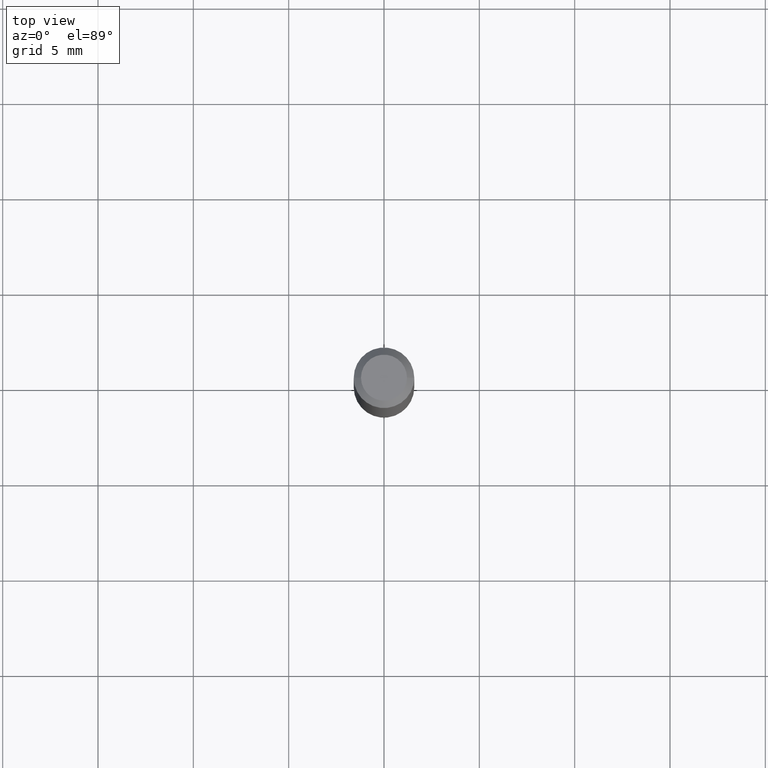
[diagram: clean part render]
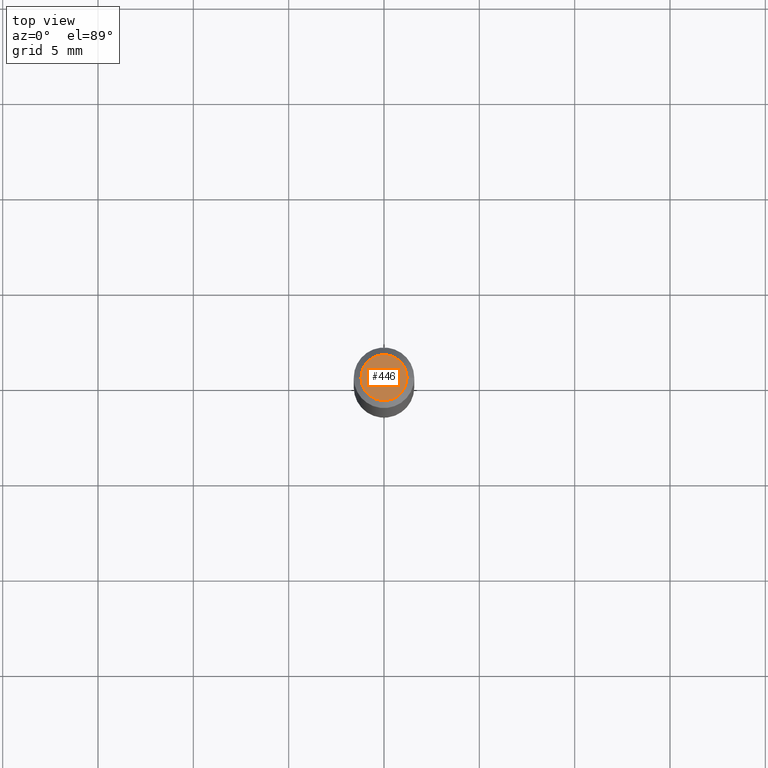
[diagram: same view with one face highlighted and labeled with its STEP entity id]
A machine part, top view. The second image highlights one B-rep face of the part: STEP entity #446.
In plain terms, the highlighted planar face has unit normal (0, -0, -1).
Its self-contained STEP definition (entity closure, byte-faithful):
#4 = CARTESIAN_POINT ( 'NONE',  ( 3.316907271900976589E-16, 0.04750000000000000749, -2.925296391183627249E-17 ) ) ;
#20 = AXIS2_PLACEMENT_3D ( 'NONE', #4, #173, #454 ) ;
#68 = VERTEX_POINT ( 'NONE', #186 ) ;
#77 = DIRECTION ( 'NONE',  ( 1.000000000000000000, -6.982962677686266711E-15, 4.852736867747365086E-29 ) ) ;
#109 = DIRECTION ( 'NONE',  ( -2.445468806185136597E-29, 3.491481338843145583E-15, 1.000000000000000000 ) ) ;
#132 = DIRECTION ( 'NONE',  ( 1.000000000000000000, -6.982962677686266711E-15, 4.852736867747365086E-29 ) ) ;
#173 = DIRECTION ( 'NONE',  ( 2.438088387897960049E-29, -3.491481338843145188E-15, -1.000000000000000000 ) ) ;
#180 = VERTEX_POINT ( 'NONE', #476 ) ;
#186 = CARTESIAN_POINT ( 'NONE',  ( -0.04750000000000000749, 3.578768372314221353E-16, 2.731847993664239060E-16 ) ) ;
#204 = CARTESIAN_POINT ( 'NONE',  ( -6.680649051745406845E-45, 9.538196290434862081E-31, 2.731847993664263218E-16 ) ) ;
#207 = AXIS2_PLACEMENT_3D ( 'NONE', #508, #109, #77 ) ;
#212 = FACE_OUTER_BOUND ( 'NONE', #306, .T. ) ;
#250 = CIRCLE ( 'NONE', #514, 0.04750000000000000749 ) ;
#260 = EDGE_CURVE ( 'NONE', #180, #68, #483, .T. ) ;
#288 = DIRECTION ( 'NONE',  ( -2.445468806185136597E-29, 3.491481338843145583E-15, 1.000000000000000000 ) ) ;
#306 = EDGE_LOOP ( 'NONE', ( #430, #313 ) ) ;
#313 = ORIENTED_EDGE ( 'NONE', *, *, #260, .T. ) ;
#369 = EDGE_CURVE ( 'NONE', #68, #180, #250, .T. ) ;
#378 = PLANE ( 'NONE',  #20 ) ;
#430 = ORIENTED_EDGE ( 'NONE', *, *, #369, .T. ) ;
#446 = ADVANCED_FACE ( 'NONE', ( #212 ), #378, .F. ) ;
#454 = DIRECTION ( 'NONE',  ( -1.000000000000000000, 6.982962677686265922E-15, -4.876176775795935793E-29 ) ) ;
#476 = CARTESIAN_POINT ( 'NONE',  ( 0.04750000000000000749, -4.035134999187568762E-16, 2.731847993664288856E-16 ) ) ;
#483 = CIRCLE ( 'NONE', #207, 0.04750000000000000749 ) ;
#508 = CARTESIAN_POINT ( 'NONE',  ( -6.680649051745406845E-45, 9.538196290434862081E-31, 2.731847993664263218E-16 ) ) ;
#514 = AXIS2_PLACEMENT_3D ( 'NONE', #204, #288, #132 ) ;